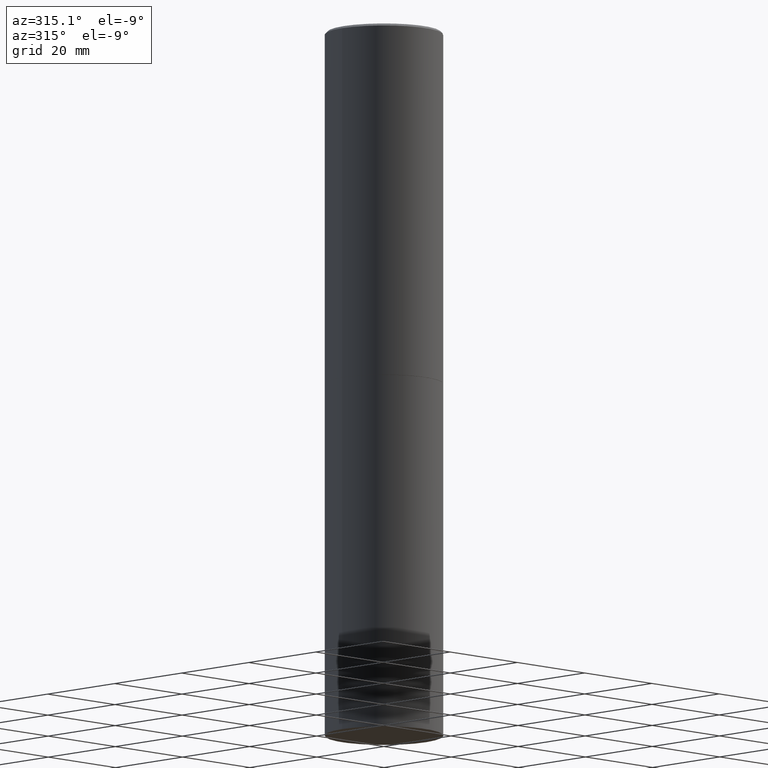
[diagram: clean part render]
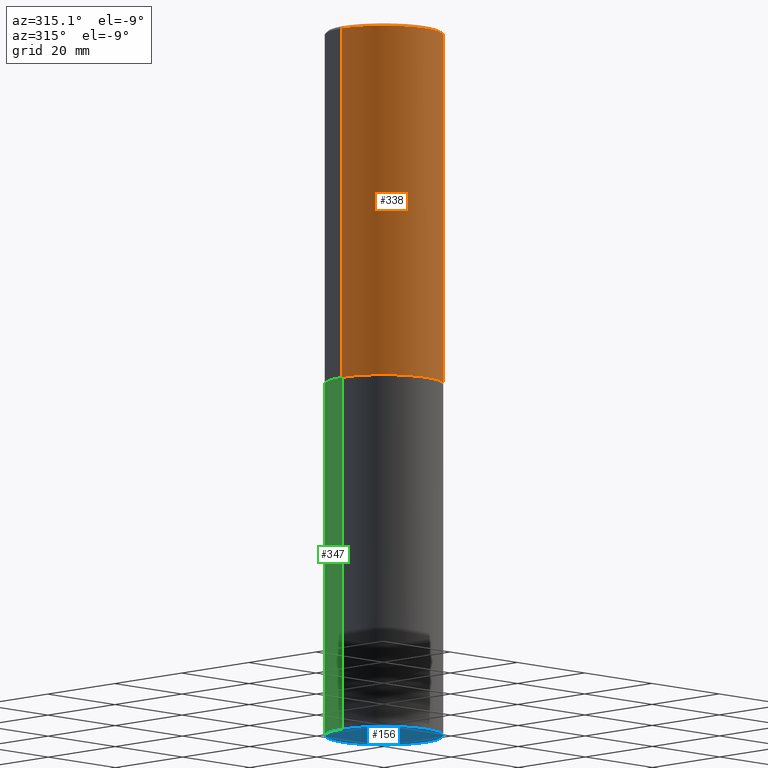
[diagram: same view with three faces highlighted in distinct colors, each labeled with its STEP entity id]
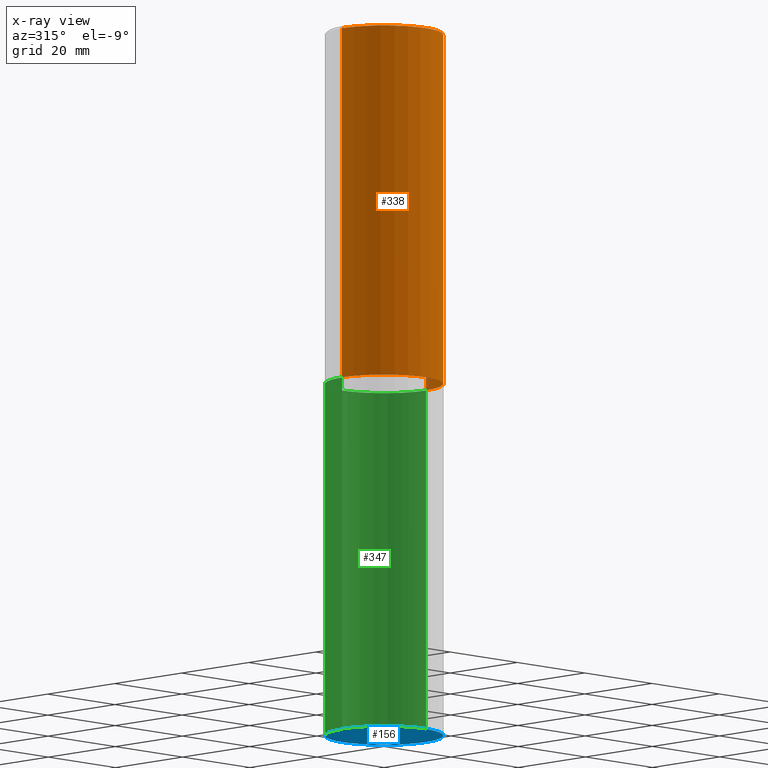
[diagram: x-ray of the same camera — body ghosted, the three highlighted faces saturated]
A machine part, auxiliary view with three faces highlighted in distinct colors.
The next image is the same camera in x-ray (body ghosted, the three faces saturated) — at least one of them is partly hidden behind the body in this view.
Their STEP definitions:

[orange] entity #338 — the highlighted cylindrical surface (partial cylindrical patch) has radius 12.5006 mm, axis along (-0, 0, 1).
#14 = VERTEX_POINT ( 'NONE', #31 ) ;
#15 = CARTESIAN_POINT ( 'NONE',  ( 7.218290275216666916E-29, -1.030580546786331359E-14, -2.951700000000000212 ) ) ;
#20 = DIRECTION ( 'NONE',  ( -2.445468806185136597E-29, 3.491481338843145583E-15, 1.000000000000000000 ) ) ;
#24 = DIRECTION ( 'NONE',  ( -2.445468806185136877E-29, 3.491481338843145188E-15, 1.000000000000000000 ) ) ;
#31 = CARTESIAN_POINT ( 'NONE',  ( -0.4921499999999996988, 3.366835455046430506E-15, -0.02000000000000010797 ) ) ;
#45 = EDGE_CURVE ( 'NONE', #14, #275, #170, .T. ) ;
#56 = ORIENTED_EDGE ( 'NONE', *, *, #91, .F. ) ;
#58 = CARTESIAN_POINT ( 'NONE',  ( 0.4921499999999998098, -3.436665081823294593E-15, 2.399810400207968762E-29 ) ) ;
#68 = CARTESIAN_POINT ( 'NONE',  ( 4.890937612370299433E-31, -6.982962677686328587E-17, -0.02000000000000010797 ) ) ;
#84 = DIRECTION ( 'NONE',  ( 1.000000000000000000, -6.982962677686265922E-15, 0.000000000000000000 ) ) ;
#91 = EDGE_CURVE ( 'NONE', #300, #14, #201, .T. ) ;
#103 = AXIS2_PLACEMENT_3D ( 'NONE', #15, #172, #84 ) ;
#111 = DIRECTION ( 'NONE',  ( -2.445468806185136877E-29, 3.491481338843145188E-15, 1.000000000000000000 ) ) ;
#143 = CARTESIAN_POINT ( 'NONE',  ( 0.4921499999999996988, -3.446223716380120377E-15, -0.02000000000000010797 ) ) ;
#146 = VERTEX_POINT ( 'NONE', #249 ) ;
#153 = DIRECTION ( 'NONE',  ( -2.445468806185136597E-29, 3.491481338843145583E-15, 1.000000000000000000 ) ) ;
#155 = FACE_OUTER_BOUND ( 'NONE', #340, .T. ) ;
#170 = CIRCLE ( 'NONE', #303, 0.4921499999999996988 ) ;
#172 = DIRECTION ( 'NONE',  ( -2.445468806185136597E-29, 3.491481338843145583E-15, 1.000000000000000000 ) ) ;
#192 = VECTOR ( 'NONE', #24, 39.37007874015748143 ) ;
#195 = ORIENTED_EDGE ( 'NONE', *, *, #230, .T. ) ;
#201 = LINE ( 'NONE', #360, #192 ) ;
#230 = EDGE_CURVE ( 'NONE', #146, #275, #252, .T. ) ;
#233 = CYLINDRICAL_SURFACE ( 'NONE', #234, 0.4921499999999998098 ) ;
#234 = AXIS2_PLACEMENT_3D ( 'NONE', #297, #20, #272 ) ;
#249 = CARTESIAN_POINT ( 'NONE',  ( 0.4921499999999999764, -1.374247054968660936E-14, -2.951700000000000212 ) ) ;
#252 = LINE ( 'NONE', #58, #315 ) ;
#272 = DIRECTION ( 'NONE',  ( 1.000000000000000000, -6.982962677686265922E-15, 4.876176775795935793E-29 ) ) ;
#273 = ORIENTED_EDGE ( 'NONE', *, *, #45, .F. ) ;
#274 = DIRECTION ( 'NONE',  ( 1.000000000000000000, -6.982962677686265922E-15, 0.000000000000000000 ) ) ;
#275 = VERTEX_POINT ( 'NONE', #143 ) ;
#292 = ORIENTED_EDGE ( 'NONE', *, *, #302, .T. ) ;
#297 = CARTESIAN_POINT ( 'NONE',  ( 0.000000000000000000, 0.000000000000000000, 0.000000000000000000 ) ) ;
#300 = VERTEX_POINT ( 'NONE', #316 ) ;
#302 = EDGE_CURVE ( 'NONE', #300, #146, #304, .T. ) ;
#303 = AXIS2_PLACEMENT_3D ( 'NONE', #68, #153, #274 ) ;
#304 = CIRCLE ( 'NONE', #103, 0.4921499999999999764 ) ;
#315 = VECTOR ( 'NONE', #111, 39.37007874015748143 ) ;
#316 = CARTESIAN_POINT ( 'NONE',  ( -0.4921499999999999764, -1.690881473276754954E-15, -2.951700000000000212 ) ) ;
#338 = ADVANCED_FACE ( 'NONE', ( #155 ), #233, .T. ) ;
#340 = EDGE_LOOP ( 'NONE', ( #56, #292, #195, #273 ) ) ;
#360 = CARTESIAN_POINT ( 'NONE',  ( -0.4921499999999998098, 3.496936074043331714E-15, -2.420853904668950949E-29 ) ) ;

[blue] entity #156 — the highlighted planar face has unit normal (0, -0, -1).
#8 = EDGE_LOOP ( 'NONE', ( #258, #67 ) ) ;
#11 = AXIS2_PLACEMENT_3D ( 'NONE', #327, #305, #74 ) ;
#17 = DIRECTION ( 'NONE',  ( 1.000000000000000000, -6.982962677686265922E-15, 0.000000000000000000 ) ) ;
#38 = EDGE_CURVE ( 'NONE', #310, #226, #78, .T. ) ;
#67 = ORIENTED_EDGE ( 'NONE', *, *, #144, .F. ) ;
#74 = DIRECTION ( 'NONE',  ( 1.000000000000000000, -6.982962677686265922E-15, 0.000000000000000000 ) ) ;
#76 = PLANE ( 'NONE',  #218 ) ;
#78 = CIRCLE ( 'NONE', #334, 0.4921499999999999764 ) ;
#90 = DIRECTION ( 'NONE',  ( -2.445468806185136597E-29, 3.491481338843145583E-15, 1.000000000000000000 ) ) ;
#109 = FACE_OUTER_BOUND ( 'NONE', #8, .T. ) ;
#144 = EDGE_CURVE ( 'NONE', #226, #310, #348, .T. ) ;
#156 = ADVANCED_FACE ( 'NONE', ( #109 ), #76, .T. ) ;
#199 = CARTESIAN_POINT ( 'NONE',  ( 0.4921499999999999764, -2.405560812836148932E-14, -5.905499999999999972 ) ) ;
#215 = DIRECTION ( 'NONE',  ( 2.438088387897960049E-29, -3.491481338843145188E-15, -1.000000000000000000 ) ) ;
#218 = AXIS2_PLACEMENT_3D ( 'NONE', #364, #215, #282 ) ;
#226 = VERTEX_POINT ( 'NONE', #290 ) ;
#258 = ORIENTED_EDGE ( 'NONE', *, *, #38, .F. ) ;
#282 = DIRECTION ( 'NONE',  ( -1.000000000000000000, 6.982962677686265922E-15, -4.876176775795935793E-29 ) ) ;
#290 = CARTESIAN_POINT ( 'NONE',  ( -0.4921499999999999764, -1.196718392382684217E-14, -5.905499999999999972 ) ) ;
#305 = DIRECTION ( 'NONE',  ( -2.445468806185136597E-29, 3.491481338843145583E-15, 1.000000000000000000 ) ) ;
#310 = VERTEX_POINT ( 'NONE', #199 ) ;
#327 = CARTESIAN_POINT ( 'NONE',  ( 1.444171603492632270E-28, -2.061894304653819197E-14, -5.905499999999999972 ) ) ;
#334 = AXIS2_PLACEMENT_3D ( 'NONE', #339, #90, #17 ) ;
#339 = CARTESIAN_POINT ( 'NONE',  ( 1.444171603492632270E-28, -2.061894304653819197E-14, -5.905499999999999972 ) ) ;
#348 = CIRCLE ( 'NONE', #11, 0.4921499999999999764 ) ;
#364 = CARTESIAN_POINT ( 'NONE',  ( 3.436665081823440533E-15, 0.4921499999999793262, -5.905500000000001748 ) ) ;

[green] entity #347 — the highlighted cylindrical surface (partial cylindrical patch) has radius 12.5006 mm, axis along (-0, 0, 1).
#12 = VERTEX_POINT ( 'NONE', #309 ) ;
#17 = DIRECTION ( 'NONE',  ( 1.000000000000000000, -6.982962677686265922E-15, 0.000000000000000000 ) ) ;
#19 = VERTEX_POINT ( 'NONE', #142 ) ;
#38 = EDGE_CURVE ( 'NONE', #310, #226, #78, .T. ) ;
#50 = DIRECTION ( 'NONE',  ( 1.000000000000000000, -6.982962677686265922E-15, 0.000000000000000000 ) ) ;
#71 = LINE ( 'NONE', #183, #114 ) ;
#78 = CIRCLE ( 'NONE', #334, 0.4921499999999999764 ) ;
#82 = CARTESIAN_POINT ( 'NONE',  ( 7.220735744022852519E-29, -1.030929694920215502E-14, -2.952700000000000102 ) ) ;
#83 = DIRECTION ( 'NONE',  ( -2.445468806185136877E-29, 3.491481338843145188E-15, 1.000000000000000000 ) ) ;
#90 = DIRECTION ( 'NONE',  ( -2.445468806185136597E-29, 3.491481338843145583E-15, 1.000000000000000000 ) ) ;
#92 = DIRECTION ( 'NONE',  ( 1.000000000000000000, -6.982962677686265922E-15, 4.876176775795935793E-29 ) ) ;
#94 = CARTESIAN_POINT ( 'NONE',  ( 0.000000000000000000, 0.000000000000000000, 0.000000000000000000 ) ) ;
#97 = DIRECTION ( 'NONE',  ( -2.445468806185136597E-29, 3.491481338843145583E-15, 1.000000000000000000 ) ) ;
#114 = VECTOR ( 'NONE', #83, 39.37007874015748143 ) ;
#127 = EDGE_LOOP ( 'NONE', ( #182, #177, #194, #337 ) ) ;
#132 = AXIS2_PLACEMENT_3D ( 'NONE', #94, #97, #92 ) ;
#137 = AXIS2_PLACEMENT_3D ( 'NONE', #82, #236, #50 ) ;
#142 = CARTESIAN_POINT ( 'NONE',  ( -0.4921499999999999764, -1.196718392382684217E-14, -2.952700000000000102 ) ) ;
#173 = CARTESIAN_POINT ( 'NONE',  ( -0.4921499999999999764, 3.496936074043332897E-15, -2.420853904668951509E-29 ) ) ;
#177 = ORIENTED_EDGE ( 'NONE', *, *, #205, .T. ) ;
#178 = EDGE_CURVE ( 'NONE', #310, #12, #71, .T. ) ;
#180 = CIRCLE ( 'NONE', #137, 0.4921499999999999764 ) ;
#182 = ORIENTED_EDGE ( 'NONE', *, *, #38, .T. ) ;
#183 = CARTESIAN_POINT ( 'NONE',  ( 0.4921499999999999764, -3.436665081823295777E-15, 2.399810400207969603E-29 ) ) ;
#194 = ORIENTED_EDGE ( 'NONE', *, *, #244, .F. ) ;
#199 = CARTESIAN_POINT ( 'NONE',  ( 0.4921499999999999764, -2.405560812836148932E-14, -5.905499999999999972 ) ) ;
#205 = EDGE_CURVE ( 'NONE', #226, #19, #313, .T. ) ;
#226 = VERTEX_POINT ( 'NONE', #290 ) ;
#236 = DIRECTION ( 'NONE',  ( -2.445468806185136597E-29, 3.491481338843145583E-15, 1.000000000000000000 ) ) ;
#244 = EDGE_CURVE ( 'NONE', #12, #19, #180, .T. ) ;
#284 = DIRECTION ( 'NONE',  ( -2.445468806185136877E-29, 3.491481338843145188E-15, 1.000000000000000000 ) ) ;
#290 = CARTESIAN_POINT ( 'NONE',  ( -0.4921499999999999764, -1.196718392382684217E-14, -5.905499999999999972 ) ) ;
#309 = CARTESIAN_POINT ( 'NONE',  ( 0.4921499999999999764, -1.374596203102545079E-14, -2.952700000000000102 ) ) ;
#310 = VERTEX_POINT ( 'NONE', #199 ) ;
#313 = LINE ( 'NONE', #173, #363 ) ;
#334 = AXIS2_PLACEMENT_3D ( 'NONE', #339, #90, #17 ) ;
#337 = ORIENTED_EDGE ( 'NONE', *, *, #178, .F. ) ;
#339 = CARTESIAN_POINT ( 'NONE',  ( 1.444171603492632270E-28, -2.061894304653819197E-14, -5.905499999999999972 ) ) ;
#347 = ADVANCED_FACE ( 'NONE', ( #354 ), #349, .T. ) ;
#349 = CYLINDRICAL_SURFACE ( 'NONE', #132, 0.4921499999999999764 ) ;
#354 = FACE_OUTER_BOUND ( 'NONE', #127, .T. ) ;
#363 = VECTOR ( 'NONE', #284, 39.37007874015748143 ) ;